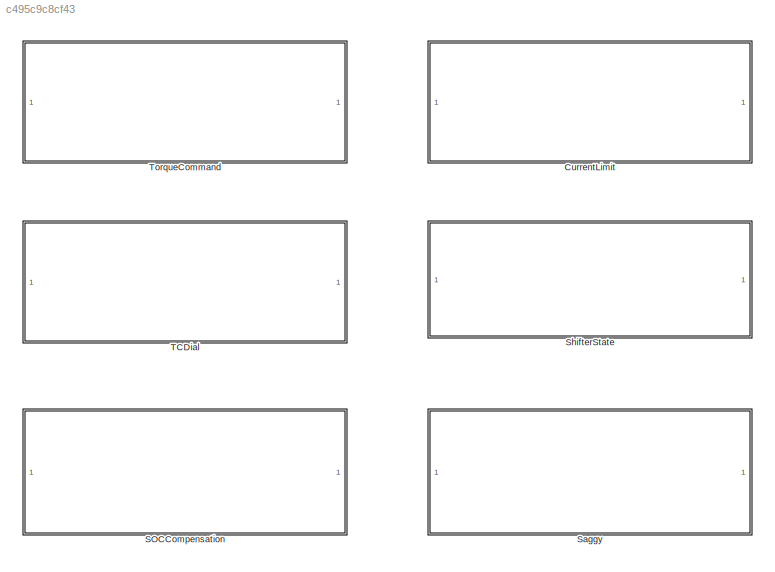
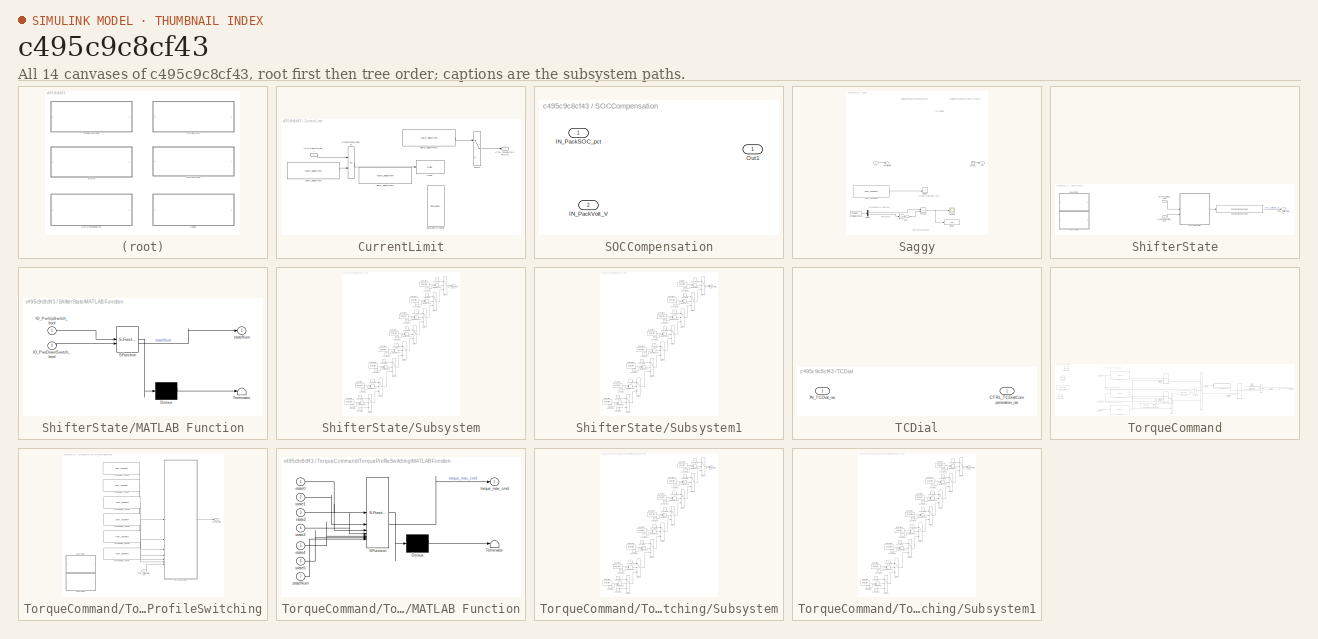
[diagram: thumbnail index - all 14 canvases of the model, root first then tree order]
MODEL slx_c495c9c8cf43
KIND library
CONFIG AbsTol = auto
CONFIG EnableMultiTasking = off
CONFIG FixedStep = auto
CONFIG MaxStep = auto
CONFIG MinStep = auto
CONFIG RelTol = 1e-3
CONFIG SampleTimeConstraint = Unconstrained
CONFIG SolverName = VariableStepAuto
CONFIG StartTime = 0.0
CONFIG StopTime = 10.0
BLOCK [SubSystem] CurrentLimit
  Commented = on
BLOCK [Outport] CurrentLimit/CTRL_TorqueCurrLim_Nm
BLOCK [Delay] CurrentLimit/Delay
  DelayLengthSource = Input port
  InputPortMap = u0,p1
BLOCK [RelationalOperator] CurrentLimit/GreaterThanOrEqual
  InputSameDT = off
  OutDataTypeStr = boolean
  RndMeth = Simplest
BLOCK [Inport] CurrentLimit/IN_DCBusCurrent_A
BLOCK [Reference] CurrentLimit/Saturation Dynamic  REF=simulink/Discontinuities/Saturation
Dynamic
  SourceBlock = simulink/Discontinuities/Saturation\nDynamic
  SourceType = Saturation Dynamic
BLOCK [Switch] CurrentLimit/Switch
  Criteria = u2 ~= 0
  InputSameDT = off
  SaturateOnIntegerOverflow = off
BLOCK [Reference] CurrentLimit/raptor_adjustment  REF=Raptor_lib/Data Storage/raptor_adjustment
  SourceBlock = Raptor_lib/Data Storage/raptor_adjustment
  SourceProductName = Raptor
  SourceType = Adjustment
BLOCK [Reference] CurrentLimit/raptor_adjustment1  REF=Raptor_lib/Data Storage/raptor_adjustment
  SourceBlock = Raptor_lib/Data Storage/raptor_adjustment
  SourceProductName = Raptor
  SourceType = Adjustment
BLOCK [Reference] CurrentLimit/raptor_adjustment2  REF=Raptor_lib/Data Storage/raptor_adjustment
  SourceBlock = Raptor_lib/Data Storage/raptor_adjustment
  SourceProductName = Raptor
  SourceType = Adjustment
BLOCK [SubSystem] SOCCompensation
BLOCK [Inport] SOCCompensation/IN_PackSOC_pct
BLOCK [Inport] SOCCompensation/IN_PackVolt_V
  Port = 2
BLOCK [Outport] SOCCompensation/Out1
BLOCK [SubSystem] Saggy
  Commented = on
BLOCK [Demux] Saggy/Demux
  Outputs = 2
BLOCK [Display] Saggy/Display
  Decimation = 1
BLOCK [Product] Saggy/Divide1
  Commented = on
  Inputs = */
BLOCK [FromWorkspace] Saggy/From Workspace
  SampleTime = -1
  VariableName = imu_input
BLOCK [Gain] Saggy/Gain
  Gain = (2*pi)/60
BLOCK [Ground] Saggy/Ground
BLOCK [Inport] Saggy/In1
BLOCK [Outport] Saggy/Out1
BLOCK [Product] Saggy/Product
BLOCK [Scope] Saggy/Scope
  Floating = off
  NumInputPorts = 1
  ScopeSpecificationString = Simulink.scopes.TimeScopeBlockCfg('CurrentConfiguration', extmgr.ConfigurationSet(extmgr.Configuration('Core','General UI',true),extmgr.Configuration('Core','Source UI',true),extmgr.Configuration('Sources','WiredSimulink',true),extmgr.Configuration('Visuals','Time Domain',true),extmgr.Configuration('Tools','Plot Navigation',true),extmgr.Configuration('Tools','Measurements',true)),'Version','2024a'...<+1ch>
BLOCK [Terminator] Saggy/Terminator
BLOCK [Reference] Saggy/raptor_adjustment2  REF=Raptor_lib/Data Storage/raptor_adjustment
  Commented = on
  SourceBlock = Raptor_lib/Data Storage/raptor_adjustment
  SourceProductName = Raptor
  SourceType = Adjustment
BLOCK [SubSystem] ShifterState
BLOCK [Outport] ShifterState/CTRL_ShifterState_en
BLOCK [Reference] ShifterState/EnumeratedOverMeas  REF=Utilities/EnumeratedOverMeas
  SourceBlock = Utilities/EnumeratedOverMeas
BLOCK [Inport] ShifterState/IO_PwrDownSwitch_bool
  Port = 2
BLOCK [Inport] ShifterState/IO_PwrUpSwitch_bool
BLOCK [SubSystem] ShifterState/MATLAB Function
  ErrorFcn = Stateflow.Translate.translate
  PermitHierarchicalResolution = ExplicitOnly
  SFBlockType = MATLAB Function
  TreatAsAtomicUnit = on
BLOCK [Demux] ShifterState/MATLAB Function/ Demux 
  Outputs = 1
BLOCK [S-Function] ShifterState/MATLAB Function/ SFunction 
  EnableBusSupport = off
  FunctionName = sf_sfun
  PortCounts = [2 2]
  SFcnIsStateOwnerBlock = off
  SFunctionDeploymentMode = off
  Tag = Stateflow S-Function 1
BLOCK [Terminator] ShifterState/MATLAB Function/ Terminator 
BLOCK [Inport] ShifterState/MATLAB Function/IO_PwrDownSwitch_bool
  Port = 2
BLOCK [Inport] ShifterState/MATLAB Function/IO_PwrUpSwitch_bool
BLOCK [Outport] ShifterState/MATLAB Function/stateNum
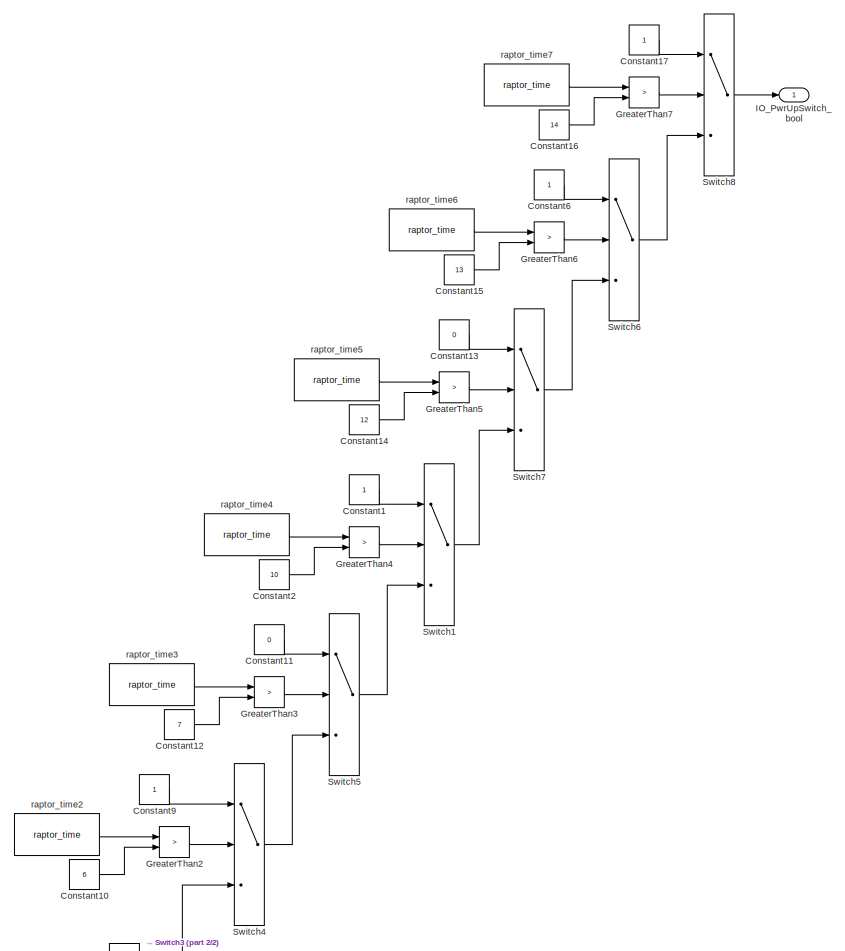
[diagram: ShifterState/Subsystem - part 1/2, full width, middle band]
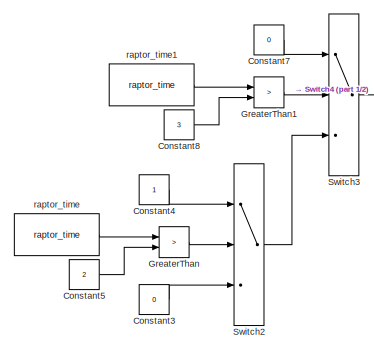
[diagram: ShifterState/Subsystem - part 2/2, bottom left region]
BLOCK [SubSystem] ShifterState/Subsystem
  Commented = on
BLOCK [Constant] ShifterState/Subsystem/Constant1
BLOCK [Constant] ShifterState/Subsystem/Constant10
  Value = 6
BLOCK [Constant] ShifterState/Subsystem/Constant11
  Value = 0
BLOCK [Constant] ShifterState/Subsystem/Constant12
  Value = 7
BLOCK [Constant] ShifterState/Subsystem/Constant13
  Value = 0
BLOCK [Constant] ShifterState/Subsystem/Constant14
  Value = 12
BLOCK [Constant] ShifterState/Subsystem/Constant15
  Value = 13
BLOCK [Constant] ShifterState/Subsystem/Constant16
  Value = 14
BLOCK [Constant] ShifterState/Subsystem/Constant17
BLOCK [Constant] ShifterState/Subsystem/Constant2
  Value = 10
BLOCK [Constant] ShifterState/Subsystem/Constant3
  Value = 0
BLOCK [Constant] ShifterState/Subsystem/Constant4
BLOCK [Constant] ShifterState/Subsystem/Constant5
  Value = 2
BLOCK [Constant] ShifterState/Subsystem/Constant6
BLOCK [Constant] ShifterState/Subsystem/Constant7
  Value = 0
BLOCK [Constant] ShifterState/Subsystem/Constant8
  Value = 3
BLOCK [Constant] ShifterState/Subsystem/Constant9
BLOCK [RelationalOperator] ShifterState/Subsystem/GreaterThan
  InputSameDT = off
  Operator = >
  OutDataTypeStr = boolean
  RndMeth = Simplest
BLOCK [RelationalOperator] ShifterState/Subsystem/GreaterThan1
  InputSameDT = off
  Operator = >
  OutDataTypeStr = boolean
  RndMeth = Simplest
BLOCK [RelationalOperator] ShifterState/Subsystem/GreaterThan2
  InputSameDT = off
  Operator = >
  OutDataTypeStr = boolean
  RndMeth = Simplest
BLOCK [RelationalOperator] ShifterState/Subsystem/GreaterThan3
  InputSameDT = off
  Operator = >
  OutDataTypeStr = boolean
  RndMeth = Simplest
BLOCK [RelationalOperator] ShifterState/Subsystem/GreaterThan4
  InputSameDT = off
  Operator = >
  OutDataTypeStr = boolean
  RndMeth = Simplest
BLOCK [RelationalOperator] ShifterState/Subsystem/GreaterThan5
  InputSameDT = off
  Operator = >
  OutDataTypeStr = boolean
  RndMeth = Simplest
BLOCK [RelationalOperator] ShifterState/Subsystem/GreaterThan6
  InputSameDT = off
  Operator = >
  OutDataTypeStr = boolean
  RndMeth = Simplest
BLOCK [RelationalOperator] ShifterState/Subsystem/GreaterThan7
  InputSameDT = off
  Operator = >
  OutDataTypeStr = boolean
  RndMeth = Simplest
BLOCK [Outport] ShifterState/Subsystem/IO_PwrUpSwitch_bool
BLOCK [Switch] ShifterState/Subsystem/Switch1
  Criteria = u2 > Threshold
  InputSameDT = off
  SaturateOnIntegerOverflow = off
BLOCK [Switch] ShifterState/Subsystem/Switch2
  Criteria = u2 > Threshold
  InputSameDT = off
  SaturateOnIntegerOverflow = off
BLOCK [Switch] ShifterState/Subsystem/Switch3
  Criteria = u2 > Threshold
  InputSameDT = off
  SaturateOnIntegerOverflow = off
BLOCK [Switch] ShifterState/Subsystem/Switch4
  Criteria = u2 > Threshold
  InputSameDT = off
  SaturateOnIntegerOverflow = off
BLOCK [Switch] ShifterState/Subsystem/Switch5
  Criteria = u2 > Threshold
  InputSameDT = off
  SaturateOnIntegerOverflow = off
BLOCK [Switch] ShifterState/Subsystem/Switch6
  Criteria = u2 > Threshold
  InputSameDT = off
  SaturateOnIntegerOverflow = off
BLOCK [Switch] ShifterState/Subsystem/Switch7
  Criteria = u2 > Threshold
  InputSameDT = off
  SaturateOnIntegerOverflow = off
BLOCK [Switch] ShifterState/Subsystem/Switch8
  Criteria = u2 > Threshold
  InputSameDT = off
  SaturateOnIntegerOverflow = off
BLOCK [Reference] ShifterState/Subsystem/raptor_time  REF=Raptor_lib/Triggers/raptor_time
  SourceBlock = Raptor_lib/Triggers/raptor_time
  SourceProductName = Raptor
  SourceType = Time
BLOCK [Reference] ShifterState/Subsystem/raptor_time1  REF=Raptor_lib/Triggers/raptor_time
  SourceBlock = Raptor_lib/Triggers/raptor_time
  SourceProductName = Raptor
  SourceType = Time
BLOCK [Reference] ShifterState/Subsystem/raptor_time2  REF=Raptor_lib/Triggers/raptor_time
  SourceBlock = Raptor_lib/Triggers/raptor_time
  SourceProductName = Raptor
  SourceType = Time
BLOCK [Reference] ShifterState/Subsystem/raptor_time3  REF=Raptor_lib/Triggers/raptor_time
  SourceBlock = Raptor_lib/Triggers/raptor_time
  SourceProductName = Raptor
  SourceType = Time
BLOCK [Reference] ShifterState/Subsystem/raptor_time4  REF=Raptor_lib/Triggers/raptor_time
  SourceBlock = Raptor_lib/Triggers/raptor_time
  SourceProductName = Raptor
  SourceType = Time
BLOCK [Reference] ShifterState/Subsystem/raptor_time5  REF=Raptor_lib/Triggers/raptor_time
  SourceBlock = Raptor_lib/Triggers/raptor_time
  SourceProductName = Raptor
  SourceType = Time
BLOCK [Reference] ShifterState/Subsystem/raptor_time6  REF=Raptor_lib/Triggers/raptor_time
  SourceBlock = Raptor_lib/Triggers/raptor_time
  SourceProductName = Raptor
  SourceType = Time
BLOCK [Reference] ShifterState/Subsystem/raptor_time7  REF=Raptor_lib/Triggers/raptor_time
  SourceBlock = Raptor_lib/Triggers/raptor_time
  SourceProductName = Raptor
  SourceType = Time
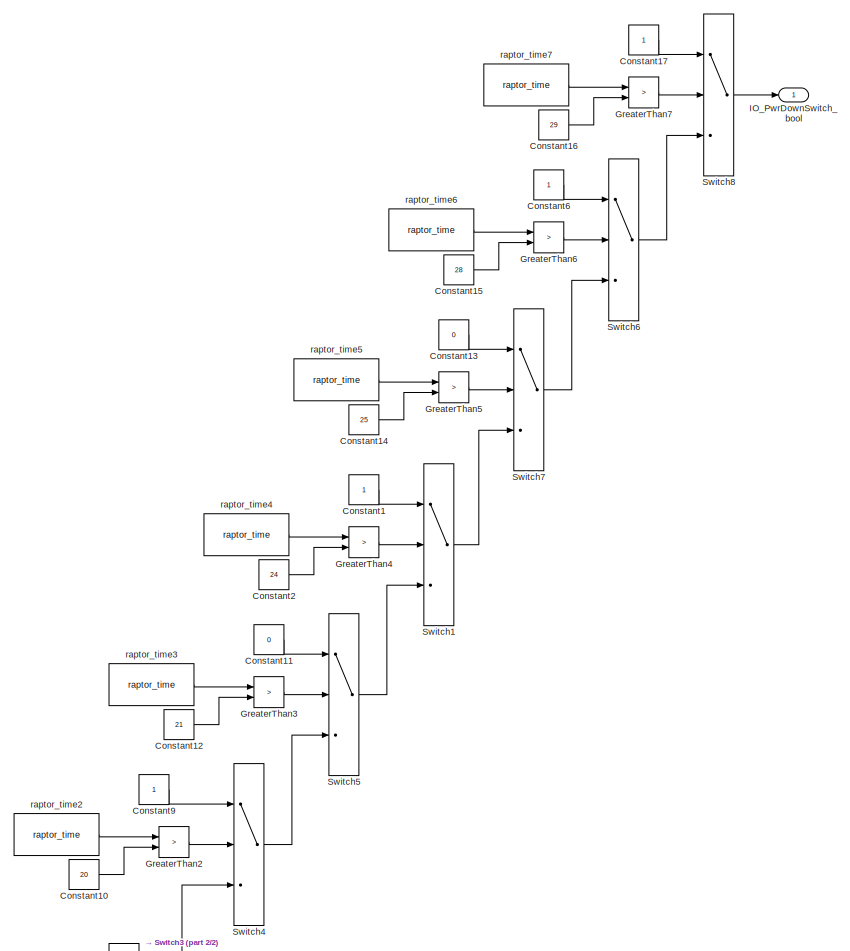
[diagram: ShifterState/Subsystem1 - part 1/2, full width, middle band]
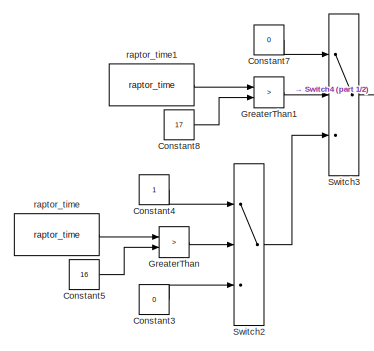
[diagram: ShifterState/Subsystem1 - part 2/2, bottom left region]
BLOCK [SubSystem] ShifterState/Subsystem1
  Commented = on
BLOCK [Constant] ShifterState/Subsystem1/Constant1
BLOCK [Constant] ShifterState/Subsystem1/Constant10
  Value = 20
BLOCK [Constant] ShifterState/Subsystem1/Constant11
  Value = 0
BLOCK [Constant] ShifterState/Subsystem1/Constant12
  Value = 21
BLOCK [Constant] ShifterState/Subsystem1/Constant13
  Value = 0
BLOCK [Constant] ShifterState/Subsystem1/Constant14
  Value = 25
BLOCK [Constant] ShifterState/Subsystem1/Constant15
  Value = 28
BLOCK [Constant] ShifterState/Subsystem1/Constant16
  Value = 29
BLOCK [Constant] ShifterState/Subsystem1/Constant17
BLOCK [Constant] ShifterState/Subsystem1/Constant2
  Value = 24
BLOCK [Constant] ShifterState/Subsystem1/Constant3
  Value = 0
BLOCK [Constant] ShifterState/Subsystem1/Constant4
BLOCK [Constant] ShifterState/Subsystem1/Constant5
  Value = 16
BLOCK [Constant] ShifterState/Subsystem1/Constant6
BLOCK [Constant] ShifterState/Subsystem1/Constant7
  Value = 0
BLOCK [Constant] ShifterState/Subsystem1/Constant8
  Value = 17
BLOCK [Constant] ShifterState/Subsystem1/Constant9
BLOCK [RelationalOperator] ShifterState/Subsystem1/GreaterThan
  InputSameDT = off
  Operator = >
  OutDataTypeStr = boolean
  RndMeth = Simplest
BLOCK [RelationalOperator] ShifterState/Subsystem1/GreaterThan1
  InputSameDT = off
  Operator = >
  OutDataTypeStr = boolean
  RndMeth = Simplest
BLOCK [RelationalOperator] ShifterState/Subsystem1/GreaterThan2
  InputSameDT = off
  Operator = >
  OutDataTypeStr = boolean
  RndMeth = Simplest
BLOCK [RelationalOperator] ShifterState/Subsystem1/GreaterThan3
  InputSameDT = off
  Operator = >
  OutDataTypeStr = boolean
  RndMeth = Simplest
BLOCK [RelationalOperator] ShifterState/Subsystem1/GreaterThan4
  InputSameDT = off
  Operator = >
  OutDataTypeStr = boolean
  RndMeth = Simplest
BLOCK [RelationalOperator] ShifterState/Subsystem1/GreaterThan5
  InputSameDT = off
  Operator = >
  OutDataTypeStr = boolean
  RndMeth = Simplest
BLOCK [RelationalOperator] ShifterState/Subsystem1/GreaterThan6
  InputSameDT = off
  Operator = >
  OutDataTypeStr = boolean
  RndMeth = Simplest
BLOCK [RelationalOperator] ShifterState/Subsystem1/GreaterThan7
  InputSameDT = off
  Operator = >
  OutDataTypeStr = boolean
  RndMeth = Simplest
BLOCK [Outport] ShifterState/Subsystem1/IO_PwrDownSwitch_bool
BLOCK [Switch] ShifterState/Subsystem1/Switch1
  Criteria = u2 > Threshold
  InputSameDT = off
  SaturateOnIntegerOverflow = off
BLOCK [Switch] ShifterState/Subsystem1/Switch2
  Criteria = u2 > Threshold
  InputSameDT = off
  SaturateOnIntegerOverflow = off
BLOCK [Switch] ShifterState/Subsystem1/Switch3
  Criteria = u2 > Threshold
  InputSameDT = off
  SaturateOnIntegerOverflow = off
BLOCK [Switch] ShifterState/Subsystem1/Switch4
  Criteria = u2 > Threshold
  InputSameDT = off
  SaturateOnIntegerOverflow = off
BLOCK [Switch] ShifterState/Subsystem1/Switch5
  Criteria = u2 > Threshold
  InputSameDT = off
  SaturateOnIntegerOverflow = off
BLOCK [Switch] ShifterState/Subsystem1/Switch6
  Criteria = u2 > Threshold
  InputSameDT = off
  SaturateOnIntegerOverflow = off
BLOCK [Switch] ShifterState/Subsystem1/Switch7
  Criteria = u2 > Threshold
  InputSameDT = off
  SaturateOnIntegerOverflow = off
BLOCK [Switch] ShifterState/Subsystem1/Switch8
  Criteria = u2 > Threshold
  InputSameDT = off
  SaturateOnIntegerOverflow = off
BLOCK [Reference] ShifterState/Subsystem1/raptor_time  REF=Raptor_lib/Triggers/raptor_time
  SourceBlock = Raptor_lib/Triggers/raptor_time
  SourceProductName = Raptor
  SourceType = Time
BLOCK [Reference] ShifterState/Subsystem1/raptor_time1  REF=Raptor_lib/Triggers/raptor_time
  SourceBlock = Raptor_lib/Triggers/raptor_time
  SourceProductName = Raptor
  SourceType = Time
BLOCK [Reference] ShifterState/Subsystem1/raptor_time2  REF=Raptor_lib/Triggers/raptor_time
  SourceBlock = Raptor_lib/Triggers/raptor_time
  SourceProductName = Raptor
  SourceType = Time
BLOCK [Reference] ShifterState/Subsystem1/raptor_time3  REF=Raptor_lib/Triggers/raptor_time
  SourceBlock = Raptor_lib/Triggers/raptor_time
  SourceProductName = Raptor
  SourceType = Time
BLOCK [Reference] ShifterState/Subsystem1/raptor_time4  REF=Raptor_lib/Triggers/raptor_time
  SourceBlock = Raptor_lib/Triggers/raptor_time
  SourceProductName = Raptor
  SourceType = Time
BLOCK [Reference] ShifterState/Subsystem1/raptor_time5  REF=Raptor_lib/Triggers/raptor_time
  SourceBlock = Raptor_lib/Triggers/raptor_time
  SourceProductName = Raptor
  SourceType = Time
BLOCK [Reference] ShifterState/Subsystem1/raptor_time6  REF=Raptor_lib/Triggers/raptor_time
  SourceBlock = Raptor_lib/Triggers/raptor_time
  SourceProductName = Raptor
  SourceType = Time
BLOCK [Reference] ShifterState/Subsystem1/raptor_time7  REF=Raptor_lib/Triggers/raptor_time
  SourceBlock = Raptor_lib/Triggers/raptor_time
  SourceProductName = Raptor
  SourceType = Time
BLOCK [SubSystem] TCDial
BLOCK [Outport] TCDial/CTRL_TCDialCompensation_na
BLOCK [Inport] TCDial/IN_TCDial_na
BLOCK [SubSystem] TorqueCommand
BLOCK [Lookup_n-D] TorqueCommand/1-D Lookup Table
  BreakpointsForDimension1 = [0;50;100;120;130;140;150;160;170;180;190;200;205;210;215;220;225;230;235;240;245;250;255;260;265;270;275;280;285;290;295;300]
  Commented = on
  InputPortMap = u0
  InternalRulePriority = Speed
  NumberOfTableDimensions = 1
  RndMeth = Simplest
  Table = [200;200;200;200;200;200;200;200;200;200;200;200;200;200;200;200;200;200;200;200;200;200;195;190;185;180;175;170;165;160;155;150]
BLOCK [Lookup_n-D] TorqueCommand/1-D Lookup Table1
  BreakpointsForDimension1 = [0;5;10;15;20;25;30;35;40;45;50;55;60;65;70;75;80;85;90;95;100]
  Commented = on
  InputPortMap = u0
  InternalRulePriority = Speed
  NumberOfTableDimensions = 1
  RndMeth = Simplest
  Table = [0;3;6;9;12;15;25;35;45;55;65;75;85;95;105;115;135;155;175;195;200]
BLOCK [Lookup_n-D] TorqueCommand/1-D Lookup Table2
  BreakpointsForDimension1 = [0;100;200;205;210;215;220;225;230;235;240;245;250;255;260;265;270;275;280;285;290;300;310;320;330;400]
  Commented = on
  InputPortMap = u0
  InternalRulePriority = Speed
  NumberOfTableDimensions = 1
  RndMeth = Simplest
  Table = [0;0;0;25;50;100;125;150;155;160;165;170;175;180;185;190;192;194;196;198;200;200;200;200;200;200]
BLOCK [Inport] TorqueCommand/CTRL_ShifterState_en
  Port = 4
BLOCK [Inport] TorqueCommand/CTRL_ThrottlePosition_pct
BLOCK [Outport] TorqueCommand/CTRL_TorqueCommand_Nm
BLOCK [Constant] TorqueCommand/Constant
  Value = uint8(0)
BLOCK [Constant] TorqueCommand/Constant1
  Value = uint8(0)
BLOCK [Constant] TorqueCommand/Constant2
  Value = uint8(0)
BLOCK [Constant] TorqueCommand/Constant3
  Value = uint8(0)
BLOCK [RelationalOperator] TorqueCommand/GreaterThanOrEqual
  InputSameDT = off
  OutDataTypeStr = boolean
  RndMeth = Simplest
BLOCK [RelationalOperator] TorqueCommand/GreaterThanOrEqual1
  InputSameDT = off
  Operator = <=
  OutDataTypeStr = boolean
  RndMeth = Simplest
BLOCK [Inport] TorqueCommand/IN_DCBusCurrent_A
  Port = 2
BLOCK [Inport] TorqueCommand/IN_DCBusVolt_V
  Port = 3
BLOCK [Reference] TorqueCommand/OverMeas  REF=Utilities/OverMeas
  SourceBlock = Utilities/OverMeas
BLOCK [Reference] TorqueCommand/Saturation Dynamic  REF=simulink/Discontinuities/Saturation
Dynamic
  SourceBlock = simulink/Discontinuities/Saturation\nDynamic
  SourceType = Saturation Dynamic
BLOCK [Reference] TorqueCommand/Saturation Dynamic1  REF=simulink/Discontinuities/Saturation
Dynamic
  SourceBlock = simulink/Discontinuities/Saturation\nDynamic
  SourceType = Saturation Dynamic
BLOCK [Reference] TorqueCommand/Saturation Dynamic2  REF=simulink/Discontinuities/Saturation
Dynamic
  SourceBlock = simulink/Discontinuities/Saturation\nDynamic
  SourceType = Saturation Dynamic
BLOCK [Switch] TorqueCommand/Switch
  Criteria = u2 ~= 0
  InputSameDT = off
  SaturateOnIntegerOverflow = off
BLOCK [Switch] TorqueCommand/Switch1
  Criteria = u2 ~= 0
  InputSameDT = off
  SaturateOnIntegerOverflow = off
BLOCK [Switch] TorqueCommand/Switch2
  Criteria = u2 ~= 0
  InputSameDT = off
  SaturateOnIntegerOverflow = off
BLOCK [SubSystem] TorqueCommand/TorqueProfileSwitching
BLOCK [Inport] TorqueCommand/TorqueProfileSwitching/CTRL_ShifterState_en
BLOCK [SubSystem] TorqueCommand/TorqueProfileSwitching/MATLAB Function
  ErrorFcn = Stateflow.Translate.translate
  PermitHierarchicalResolution = ExplicitOnly
  SFBlockType = MATLAB Function
  TreatAsAtomicUnit = on
BLOCK [Demux] TorqueCommand/TorqueProfileSwitching/MATLAB Function/ Demux 
  Outputs = 1
BLOCK [S-Function] TorqueCommand/TorqueProfileSwitching/MATLAB Function/ SFunction 
  EnableBusSupport = off
  FunctionName = sf_sfun
  PortCounts = [7 2]
  SFcnIsStateOwnerBlock = off
  SFunctionDeploymentMode = off
  Tag = Stateflow S-Function 2
BLOCK [Terminator] TorqueCommand/TorqueProfileSwitching/MATLAB Function/ Terminator 
BLOCK [Inport] TorqueCommand/TorqueProfileSwitching/MATLAB Function/state0
BLOCK [Inport] TorqueCommand/TorqueProfileSwitching/MATLAB Function/state1
  Port = 2
BLOCK [Inport] TorqueCommand/TorqueProfileSwitching/MATLAB Function/state2
  Port = 3
BLOCK [Inport] TorqueCommand/TorqueProfileSwitching/MATLAB Function/state3
  Port = 4
BLOCK [Inport] TorqueCommand/TorqueProfileSwitching/MATLAB Function/state4
  Port = 5
BLOCK [Inport] TorqueCommand/TorqueProfileSwitching/MATLAB Function/state5
  Port = 6
BLOCK [Inport] TorqueCommand/TorqueProfileSwitching/MATLAB Function/stateNum
  Port = 7
BLOCK [Outport] TorqueCommand/TorqueProfileSwitching/MATLAB Function/torque_max_cmd
BLOCK [SubSystem] TorqueCommand/TorqueProfileSwitching/Subsystem
  Commented = on
BLOCK [Constant] TorqueCommand/TorqueProfileSwitching/Subsystem/Constant1
BLOCK [Constant] TorqueCommand/TorqueProfileSwitching/Subsystem/Constant10
  Value = 6
BLOCK [Constant] TorqueCommand/TorqueProfileSwitching/Subsystem/Constant11
  Value = 0
BLOCK [Constant] TorqueCommand/TorqueProfileSwitching/Subsystem/Constant12
  Value = 7
BLOCK [Constant] TorqueCommand/TorqueProfileSwitching/Subsystem/Constant13
  Value = 0
BLOCK [Constant] TorqueCommand/TorqueProfileSwitching/Subsystem/Constant14
  Value = 12
BLOCK [Constant] TorqueCommand/TorqueProfileSwitching/Subsystem/Constant15
  Value = 13
BLOCK [Constant] TorqueCommand/TorqueProfileSwitching/Subsystem/Constant16
  Value = 14
BLOCK [Constant] TorqueCommand/TorqueProfileSwitching/Subsystem/Constant17
BLOCK [Constant] TorqueCommand/TorqueProfileSwitching/Subsystem/Constant2
  Value = 10
BLOCK [Constant] TorqueCommand/TorqueProfileSwitching/Subsystem/Constant3
  Value = 0
BLOCK [Constant] TorqueCommand/TorqueProfileSwitching/Subsystem/Constant4
BLOCK [Constant] TorqueCommand/TorqueProfileSwitching/Subsystem/Constant5
  Value = 2
BLOCK [Constant] TorqueCommand/TorqueProfileSwitching/Subsystem/Constant6
BLOCK [Constant] TorqueCommand/TorqueProfileSwitching/Subsystem/Constant7
  Value = 0
BLOCK [Constant] TorqueCommand/TorqueProfileSwitching/Subsystem/Constant8
  Value = 3
BLOCK [Constant] TorqueCommand/TorqueProfileSwitching/Subsystem/Constant9
BLOCK [RelationalOperator] TorqueCommand/TorqueProfileSwitching/Subsystem/GreaterThan
  InputSameDT = off
  Operator = >
  OutDataTypeStr = boolean
  RndMeth = Simplest
BLOCK [RelationalOperator] TorqueCommand/TorqueProfileSwitching/Subsystem/GreaterThan1
  InputSameDT = off
  Operator = >
  OutDataTypeStr = boolean
  RndMeth = Simplest
BLOCK [RelationalOperator] TorqueCommand/TorqueProfileSwitching/Subsystem/GreaterThan2
  InputSameDT = off
  Operator = >
  OutDataTypeStr = boolean
  RndMeth = Simplest
BLOCK [RelationalOperator] TorqueCommand/TorqueProfileSwitching/Subsystem/GreaterThan3
  InputSameDT = off
  Operator = >
  OutDataTypeStr = boolean
  RndMeth = Simplest
BLOCK [RelationalOperator] TorqueCommand/TorqueProfileSwitching/Subsystem/GreaterThan4
  InputSameDT = off
  Operator = >
  OutDataTypeStr = boolean
  RndMeth = Simplest
BLOCK [RelationalOperator] TorqueCommand/TorqueProfileSwitching/Subsystem/GreaterThan5
  InputSameDT = off
  Operator = >
  OutDataTypeStr = boolean
  RndMeth = Simplest
BLOCK [RelationalOperator] TorqueCommand/TorqueProfileSwitching/Subsystem/GreaterThan6
  InputSameDT = off
  Operator = >
  OutDataTypeStr = boolean
  RndMeth = Simplest
BLOCK [RelationalOperator] TorqueCommand/TorqueProfileSwitching/Subsystem/GreaterThan7
  InputSameDT = off
  Operator = >
  OutDataTypeStr = boolean
  RndMeth = Simplest
BLOCK [Outport] TorqueCommand/TorqueProfileSwitching/Subsystem/IO_PwrUpSwitch_bool
BLOCK [Switch] TorqueCommand/TorqueProfileSwitching/Subsystem/Switch1
  Criteria = u2 > Threshold
  InputSameDT = off
  SaturateOnIntegerOverflow = off
BLOCK [Switch] TorqueCommand/TorqueProfileSwitching/Subsystem/Switch2
  Criteria = u2 > Threshold
  InputSameDT = off
  SaturateOnIntegerOverflow = off
BLOCK [Switch] TorqueCommand/TorqueProfileSwitching/Subsystem/Switch3
  Criteria = u2 > Threshold
  InputSameDT = off
  SaturateOnIntegerOverflow = off
BLOCK [Switch] TorqueCommand/TorqueProfileSwitching/Subsystem/Switch4
  Criteria = u2 > Threshold
  InputSameDT = off
  SaturateOnIntegerOverflow = off
BLOCK [Switch] TorqueCommand/TorqueProfileSwitching/Subsystem/Switch5
  Criteria = u2 > Threshold
  InputSameDT = off
  SaturateOnIntegerOverflow = off
BLOCK [Switch] TorqueCommand/TorqueProfileSwitching/Subsystem/Switch6
  Criteria = u2 > Threshold
  InputSameDT = off
  SaturateOnIntegerOverflow = off
BLOCK [Switch] TorqueCommand/TorqueProfileSwitching/Subsystem/Switch7
  Criteria = u2 > Threshold
  InputSameDT = off
  SaturateOnIntegerOverflow = off
BLOCK [Switch] TorqueCommand/TorqueProfileSwitching/Subsystem/Switch8
  Criteria = u2 > Threshold
  InputSameDT = off
  SaturateOnIntegerOverflow = off
BLOCK [Reference] TorqueCommand/TorqueProfileSwitching/Subsystem/raptor_time  REF=Raptor_lib/Triggers/raptor_time
  SourceBlock = Raptor_lib/Triggers/raptor_time
  SourceProductName = Raptor
  SourceType = Time
BLOCK [Reference] TorqueCommand/TorqueProfileSwitching/Subsystem/raptor_time1  REF=Raptor_lib/Triggers/raptor_time
  SourceBlock = Raptor_lib/Triggers/raptor_time
  SourceProductName = Raptor
  SourceType = Time
BLOCK [Reference] TorqueCommand/TorqueProfileSwitching/Subsystem/raptor_time2  REF=Raptor_lib/Triggers/raptor_time
  SourceBlock = Raptor_lib/Triggers/raptor_time
  SourceProductName = Raptor
  SourceType = Time
BLOCK [Reference] TorqueCommand/TorqueProfileSwitching/Subsystem/raptor_time3  REF=Raptor_lib/Triggers/raptor_time
  SourceBlock = Raptor_lib/Triggers/raptor_time
  SourceProductName = Raptor
  SourceType = Time
BLOCK [Reference] TorqueCommand/TorqueProfileSwitching/Subsystem/raptor_time4  REF=Raptor_lib/Triggers/raptor_time
  SourceBlock = Raptor_lib/Triggers/raptor_time
  SourceProductName = Raptor
  SourceType = Time
BLOCK [Reference] TorqueCommand/TorqueProfileSwitching/Subsystem/raptor_time5  REF=Raptor_lib/Triggers/raptor_time
  SourceBlock = Raptor_lib/Triggers/raptor_time
  SourceProductName = Raptor
  SourceType = Time
BLOCK [Reference] TorqueCommand/TorqueProfileSwitching/Subsystem/raptor_time6  REF=Raptor_lib/Triggers/raptor_time
  SourceBlock = Raptor_lib/Triggers/raptor_time
  SourceProductName = Raptor
  SourceType = Time
BLOCK [Reference] TorqueCommand/TorqueProfileSwitching/Subsystem/raptor_time7  REF=Raptor_lib/Triggers/raptor_time
  SourceBlock = Raptor_lib/Triggers/raptor_time
  SourceProductName = Raptor
  SourceType = Time
BLOCK [SubSystem] TorqueCommand/TorqueProfileSwitching/Subsystem1
  Commented = on
BLOCK [Constant] TorqueCommand/TorqueProfileSwitching/Subsystem1/Constant1
BLOCK [Constant] TorqueCommand/TorqueProfileSwitching/Subsystem1/Constant10
  Value = 20
BLOCK [Constant] TorqueCommand/TorqueProfileSwitching/Subsystem1/Constant11
  Value = 0
BLOCK [Constant] TorqueCommand/TorqueProfileSwitching/Subsystem1/Constant12
  Value = 21
BLOCK [Constant] TorqueCommand/TorqueProfileSwitching/Subsystem1/Constant13
  Value = 0
BLOCK [Constant] TorqueCommand/TorqueProfileSwitching/Subsystem1/Constant14
  Value = 25
BLOCK [Constant] TorqueCommand/TorqueProfileSwitching/Subsystem1/Constant15
  Value = 28
BLOCK [Constant] TorqueCommand/TorqueProfileSwitching/Subsystem1/Constant16
  Value = 29
BLOCK [Constant] TorqueCommand/TorqueProfileSwitching/Subsystem1/Constant17
BLOCK [Constant] TorqueCommand/TorqueProfileSwitching/Subsystem1/Constant2
  Value = 24
BLOCK [Constant] TorqueCommand/TorqueProfileSwitching/Subsystem1/Constant3
  Value = 0
BLOCK [Constant] TorqueCommand/TorqueProfileSwitching/Subsystem1/Constant4
BLOCK [Constant] TorqueCommand/TorqueProfileSwitching/Subsystem1/Constant5
  Value = 16
BLOCK [Constant] TorqueCommand/TorqueProfileSwitching/Subsystem1/Constant6
BLOCK [Constant] TorqueCommand/TorqueProfileSwitching/Subsystem1/Constant7
  Value = 0
BLOCK [Constant] TorqueCommand/TorqueProfileSwitching/Subsystem1/Constant8
  Value = 17
BLOCK [Constant] TorqueCommand/TorqueProfileSwitching/Subsystem1/Constant9
BLOCK [RelationalOperator] TorqueCommand/TorqueProfileSwitching/Subsystem1/GreaterThan
  InputSameDT = off
  Operator = >
  OutDataTypeStr = boolean
  RndMeth = Simplest
BLOCK [RelationalOperator] TorqueCommand/TorqueProfileSwitching/Subsystem1/GreaterThan1
  InputSameDT = off
  Operator = >
  OutDataTypeStr = boolean
  RndMeth = Simplest
BLOCK [RelationalOperator] TorqueCommand/TorqueProfileSwitching/Subsystem1/GreaterThan2
  InputSameDT = off
  Operator = >
  OutDataTypeStr = boolean
  RndMeth = Simplest
BLOCK [RelationalOperator] TorqueCommand/TorqueProfileSwitching/Subsystem1/GreaterThan3
  InputSameDT = off
  Operator = >
  OutDataTypeStr = boolean
  RndMeth = Simplest
BLOCK [RelationalOperator] TorqueCommand/TorqueProfileSwitching/Subsystem1/GreaterThan4
  InputSameDT = off
  Operator = >
  OutDataTypeStr = boolean
  RndMeth = Simplest
BLOCK [RelationalOperator] TorqueCommand/TorqueProfileSwitching/Subsystem1/GreaterThan5
  InputSameDT = off
  Operator = >
  OutDataTypeStr = boolean
  RndMeth = Simplest
BLOCK [RelationalOperator] TorqueCommand/TorqueProfileSwitching/Subsystem1/GreaterThan6
  InputSameDT = off
  Operator = >
  OutDataTypeStr = boolean
  RndMeth = Simplest
BLOCK [RelationalOperator] TorqueCommand/TorqueProfileSwitching/Subsystem1/GreaterThan7
  InputSameDT = off
  Operator = >
  OutDataTypeStr = boolean
  RndMeth = Simplest
BLOCK [Outport] TorqueCommand/TorqueProfileSwitching/Subsystem1/IO_PwrDownSwitch_bool
BLOCK [Switch] TorqueCommand/TorqueProfileSwitching/Subsystem1/Switch1
  Criteria = u2 > Threshold
  InputSameDT = off
  SaturateOnIntegerOverflow = off
BLOCK [Switch] TorqueCommand/TorqueProfileSwitching/Subsystem1/Switch2
  Criteria = u2 > Threshold
  InputSameDT = off
  SaturateOnIntegerOverflow = off
BLOCK [Switch] TorqueCommand/TorqueProfileSwitching/Subsystem1/Switch3
  Criteria = u2 > Threshold
  InputSameDT = off
  SaturateOnIntegerOverflow = off
BLOCK [Switch] TorqueCommand/TorqueProfileSwitching/Subsystem1/Switch4
  Criteria = u2 > Threshold
  InputSameDT = off
  SaturateOnIntegerOverflow = off
BLOCK [Switch] TorqueCommand/TorqueProfileSwitching/Subsystem1/Switch5
  Criteria = u2 > Threshold
  InputSameDT = off
  SaturateOnIntegerOverflow = off
BLOCK [Switch] TorqueCommand/TorqueProfileSwitching/Subsystem1/Switch6
  Criteria = u2 > Threshold
  InputSameDT = off
  SaturateOnIntegerOverflow = off
BLOCK [Switch] TorqueCommand/TorqueProfileSwitching/Subsystem1/Switch7
  Criteria = u2 > Threshold
  InputSameDT = off
  SaturateOnIntegerOverflow = off
BLOCK [Switch] TorqueCommand/TorqueProfileSwitching/Subsystem1/Switch8
  Criteria = u2 > Threshold
  InputSameDT = off
  SaturateOnIntegerOverflow = off
BLOCK [Reference] TorqueCommand/TorqueProfileSwitching/Subsystem1/raptor_time  REF=Raptor_lib/Triggers/raptor_time
  SourceBlock = Raptor_lib/Triggers/raptor_time
  SourceProductName = Raptor
  SourceType = Time
BLOCK [Reference] TorqueCommand/TorqueProfileSwitching/Subsystem1/raptor_time1  REF=Raptor_lib/Triggers/raptor_time
  SourceBlock = Raptor_lib/Triggers/raptor_time
  SourceProductName = Raptor
  SourceType = Time
BLOCK [Reference] TorqueCommand/TorqueProfileSwitching/Subsystem1/raptor_time2  REF=Raptor_lib/Triggers/raptor_time
  SourceBlock = Raptor_lib/Triggers/raptor_time
  SourceProductName = Raptor
  SourceType = Time
BLOCK [Reference] TorqueCommand/TorqueProfileSwitching/Subsystem1/raptor_time3  REF=Raptor_lib/Triggers/raptor_time
  SourceBlock = Raptor_lib/Triggers/raptor_time
  SourceProductName = Raptor
  SourceType = Time
BLOCK [Reference] TorqueCommand/TorqueProfileSwitching/Subsystem1/raptor_time4  REF=Raptor_lib/Triggers/raptor_time
  SourceBlock = Raptor_lib/Triggers/raptor_time
  SourceProductName = Raptor
  SourceType = Time
BLOCK [Reference] TorqueCommand/TorqueProfileSwitching/Subsystem1/raptor_time5  REF=Raptor_lib/Triggers/raptor_time
  SourceBlock = Raptor_lib/Triggers/raptor_time
  SourceProductName = Raptor
  SourceType = Time
BLOCK [Reference] TorqueCommand/TorqueProfileSwitching/Subsystem1/raptor_time6  REF=Raptor_lib/Triggers/raptor_time
  SourceBlock = Raptor_lib/Triggers/raptor_time
  SourceProductName = Raptor
  SourceType = Time
BLOCK [Reference] TorqueCommand/TorqueProfileSwitching/Subsystem1/raptor_time7  REF=Raptor_lib/Triggers/raptor_time
  SourceBlock = Raptor_lib/Triggers/raptor_time
  SourceProductName = Raptor
  SourceType = Time
BLOCK [Outport] TorqueCommand/TorqueProfileSwitching/TorqueLimit
BLOCK [Reference] TorqueCommand/TorqueProfileSwitching/TorqueMax_100Nm  REF=Raptor_lib/Data Storage/raptor_adjustment
  SourceBlock = Raptor_lib/Data Storage/raptor_adjustment
  SourceProductName = Raptor
  SourceType = Adjustment
BLOCK [Reference] TorqueCommand/TorqueProfileSwitching/TorqueMax_120Nm  REF=Raptor_lib/Data Storage/raptor_adjustment
  SourceBlock = Raptor_lib/Data Storage/raptor_adjustment
  SourceProductName = Raptor
  SourceType = Adjustment
BLOCK [Reference] TorqueCommand/TorqueProfileSwitching/TorqueMax_140Nm  REF=Raptor_lib/Data Storage/raptor_adjustment
  SourceBlock = Raptor_lib/Data Storage/raptor_adjustment
  SourceProductName = Raptor
  SourceType = Adjustment
BLOCK [Reference] TorqueCommand/TorqueProfileSwitching/TorqueMax_160Nm  REF=Raptor_lib/Data Storage/raptor_adjustment
  SourceBlock = Raptor_lib/Data Storage/raptor_adjustment
  SourceProductName = Raptor
  SourceType = Adjustment
BLOCK [Reference] TorqueCommand/TorqueProfileSwitching/TorqueMax_180Nm  REF=Raptor_lib/Data Storage/raptor_adjustment
  SourceBlock = Raptor_lib/Data Storage/raptor_adjustment
  SourceProductName = Raptor
  SourceType = Adjustment
BLOCK [Reference] TorqueCommand/TorqueProfileSwitching/TorqueMax_200Nm  REF=Raptor_lib/Data Storage/raptor_adjustment
  SourceBlock = Raptor_lib/Data Storage/raptor_adjustment
  SourceProductName = Raptor
  SourceType = Adjustment
BLOCK [Reference] TorqueCommand/raptor_adjustment1  REF=Raptor_lib/Data Storage/raptor_adjustment
  SourceBlock = Raptor_lib/Data Storage/raptor_adjustment
  SourceProductName = Raptor
  SourceType = Adjustment
BLOCK [Reference] TorqueCommand/raptor_adjustment2  REF=Raptor_lib/Data Storage/raptor_adjustment
  SourceBlock = Raptor_lib/Data Storage/raptor_adjustment
  SourceProductName = Raptor
  SourceType = Adjustment
BLOCK [Reference] TorqueCommand/raptor_adjustment3  REF=Raptor_lib/Data Storage/raptor_adjustment
  Commented = on
  SourceBlock = Raptor_lib/Data Storage/raptor_adjustment
  SourceProductName = Raptor
  SourceType = Adjustment
BLOCK [Reference] TorqueCommand/raptor_fault_action  REF=Raptor_lib/Faults/raptor_fault_action
  SourceBlock = Raptor_lib/Faults/raptor_fault_action
  SourceProductName = Raptor
  SourceType = Fault Action
BLOCK [Reference] TorqueCommand/raptor_table_1d  REF=Raptor_lib/Table Lookup/raptor_table_1d
  SourceBlock = Raptor_lib/Table Lookup/raptor_table_1d
  SourceProductName = Raptor
  SourceType = Table 1d
BLOCK [Reference] TorqueCommand/raptor_table_1d1  REF=Raptor_lib/Table Lookup/raptor_table_1d
  SourceBlock = Raptor_lib/Table Lookup/raptor_table_1d
  SourceProductName = Raptor
  SourceType = Table 1d
BLOCK [Reference] TorqueCommand/raptor_table_1d2  REF=Raptor_lib/Table Lookup/raptor_table_1d
  SourceBlock = Raptor_lib/Table Lookup/raptor_table_1d
  SourceProductName = Raptor
  SourceType = Table 1d
ANNOTATION Saggy: angular acceleration (rad/s)
ANNOTATION Saggy: force of motor
ANNOTATION Saggy: maximize torque while reducing current draw
ANNOTATION Saggy: motor mechanical power
ANNOTATION Saggy: motor speed
ANNOTATION Saggy: torque feedback (net torque)
ANNOTATION Saggy: want to detect voltage sag before it happens
ANNOTATION TorqueCommand: if there is an overcurrent condition, set new torque limit
ANNOTATION TorqueCommand: if there is an undervoltage condition, set new torque limit
ANNOTATION TorqueCommand: what torque values do we see? check logs
LINE CurrentLimit/GreaterThanOrEqual:1 -> CurrentLimit/Delay:1
LINE CurrentLimit/IN_DCBusCurrent_A:1 -> CurrentLimit/GreaterThanOrEqual:1
LINE CurrentLimit/Switch:1 -> CurrentLimit/CTRL_TorqueCurrLim_Nm:1
LINE CurrentLimit/raptor_adjustment1:1 -> CurrentLimit/Switch:1
LINE CurrentLimit/raptor_adjustment:1 -> CurrentLimit/GreaterThanOrEqual:2
LINE Saggy/Demux:1 -> Saggy/Product:1
LINE Saggy/Demux:2 -> Saggy/Gain:1
LINE Saggy/From Workspace:1 -> Saggy/Demux:1
LINE Saggy/Gain:1 -> Saggy/Product:2
LINE Saggy/Ground:1 -> Saggy/Out1:1
LINE Saggy/In1:1 -> Saggy/Terminator:1
NET Saggy/Product:1 -> Saggy/Display:1, Saggy/Scope:1
LINE Saggy/raptor_adjustment2:1 -> Saggy/Divide1:2
LINE ShifterState/EnumeratedOverMeas:1 -> ShifterState/CTRL_ShifterState_en:1
LINE ShifterState/IO_PwrDownSwitch_bool:1 -> ShifterState/MATLAB Function:2
LINE ShifterState/IO_PwrUpSwitch_bool:1 -> ShifterState/MATLAB Function:1
LINE ShifterState/MATLAB Function:1 -> ShifterState/EnumeratedOverMeas:1
LINE ShifterState/Subsystem/Constant10:1 -> ShifterState/Subsystem/GreaterThan2:2
LINE ShifterState/Subsystem/Constant11:1 -> ShifterState/Subsystem/Switch5:1
LINE ShifterState/Subsystem/Constant12:1 -> ShifterState/Subsystem/GreaterThan3:2
LINE ShifterState/Subsystem/Constant13:1 -> ShifterState/Subsystem/Switch7:1
LINE ShifterState/Subsystem/Constant14:1 -> ShifterState/Subsystem/GreaterThan5:2
LINE ShifterState/Subsystem/Constant15:1 -> ShifterState/Subsystem/GreaterThan6:2
LINE ShifterState/Subsystem/Constant16:1 -> ShifterState/Subsystem/GreaterThan7:2
LINE ShifterState/Subsystem/Constant17:1 -> ShifterState/Subsystem/Switch8:1
LINE ShifterState/Subsystem/Constant1:1 -> ShifterState/Subsystem/Switch1:1
LINE ShifterState/Subsystem/Constant2:1 -> ShifterState/Subsystem/GreaterThan4:2
LINE ShifterState/Subsystem/Constant3:1 -> ShifterState/Subsystem/Switch2:3
LINE ShifterState/Subsystem/Constant4:1 -> ShifterState/Subsystem/Switch2:1
LINE ShifterState/Subsystem/Constant5:1 -> ShifterState/Subsystem/GreaterThan:2
LINE ShifterState/Subsystem/Constant6:1 -> ShifterState/Subsystem/Switch6:1
LINE ShifterState/Subsystem/Constant7:1 -> ShifterState/Subsystem/Switch3:1
LINE ShifterState/Subsystem/Constant8:1 -> ShifterState/Subsystem/GreaterThan1:2
LINE ShifterState/Subsystem/Constant9:1 -> ShifterState/Subsystem/Switch4:1
LINE ShifterState/Subsystem/GreaterThan1:1 -> ShifterState/Subsystem/Switch3:2
LINE ShifterState/Subsystem/GreaterThan2:1 -> ShifterState/Subsystem/Switch4:2
LINE ShifterState/Subsystem/GreaterThan3:1 -> ShifterState/Subsystem/Switch5:2
LINE ShifterState/Subsystem/GreaterThan4:1 -> ShifterState/Subsystem/Switch1:2
LINE ShifterState/Subsystem/GreaterThan5:1 -> ShifterState/Subsystem/Switch7:2
LINE ShifterState/Subsystem/GreaterThan6:1 -> ShifterState/Subsystem/Switch6:2
LINE ShifterState/Subsystem/GreaterThan7:1 -> ShifterState/Subsystem/Switch8:2
LINE ShifterState/Subsystem/GreaterThan:1 -> ShifterState/Subsystem/Switch2:2
LINE ShifterState/Subsystem/Switch1:1 -> ShifterState/Subsystem/Switch7:3
LINE ShifterState/Subsystem/Switch2:1 -> ShifterState/Subsystem/Switch3:3
LINE ShifterState/Subsystem/Switch3:1 -> ShifterState/Subsystem/Switch4:3
LINE ShifterState/Subsystem/Switch4:1 -> ShifterState/Subsystem/Switch5:3
LINE ShifterState/Subsystem/Switch5:1 -> ShifterState/Subsystem/Switch1:3
LINE ShifterState/Subsystem/Switch6:1 -> ShifterState/Subsystem/Switch8:3
LINE ShifterState/Subsystem/Switch7:1 -> ShifterState/Subsystem/Switch6:3
LINE ShifterState/Subsystem/Switch8:1 -> ShifterState/Subsystem/IO_PwrUpSwitch_bool:1
LINE ShifterState/Subsystem/raptor_time1:1 -> ShifterState/Subsystem/GreaterThan1:1
LINE ShifterState/Subsystem/raptor_time2:1 -> ShifterState/Subsystem/GreaterThan2:1
LINE ShifterState/Subsystem/raptor_time3:1 -> ShifterState/Subsystem/GreaterThan3:1
LINE ShifterState/Subsystem/raptor_time4:1 -> ShifterState/Subsystem/GreaterThan4:1
LINE ShifterState/Subsystem/raptor_time5:1 -> ShifterState/Subsystem/GreaterThan5:1
LINE ShifterState/Subsystem/raptor_time6:1 -> ShifterState/Subsystem/GreaterThan6:1
LINE ShifterState/Subsystem/raptor_time7:1 -> ShifterState/Subsystem/GreaterThan7:1
LINE ShifterState/Subsystem/raptor_time:1 -> ShifterState/Subsystem/GreaterThan:1
LINE ShifterState/Subsystem1/Constant10:1 -> ShifterState/Subsystem1/GreaterThan2:2
LINE ShifterState/Subsystem1/Constant11:1 -> ShifterState/Subsystem1/Switch5:1
LINE ShifterState/Subsystem1/Constant12:1 -> ShifterState/Subsystem1/GreaterThan3:2
LINE ShifterState/Subsystem1/Constant13:1 -> ShifterState/Subsystem1/Switch7:1
LINE ShifterState/Subsystem1/Constant14:1 -> ShifterState/Subsystem1/GreaterThan5:2
LINE ShifterState/Subsystem1/Constant15:1 -> ShifterState/Subsystem1/GreaterThan6:2
LINE ShifterState/Subsystem1/Constant16:1 -> ShifterState/Subsystem1/GreaterThan7:2
LINE ShifterState/Subsystem1/Constant17:1 -> ShifterState/Subsystem1/Switch8:1
LINE ShifterState/Subsystem1/Constant1:1 -> ShifterState/Subsystem1/Switch1:1
LINE ShifterState/Subsystem1/Constant2:1 -> ShifterState/Subsystem1/GreaterThan4:2
LINE ShifterState/Subsystem1/Constant3:1 -> ShifterState/Subsystem1/Switch2:3
LINE ShifterState/Subsystem1/Constant4:1 -> ShifterState/Subsystem1/Switch2:1
LINE ShifterState/Subsystem1/Constant5:1 -> ShifterState/Subsystem1/GreaterThan:2
LINE ShifterState/Subsystem1/Constant6:1 -> ShifterState/Subsystem1/Switch6:1
LINE ShifterState/Subsystem1/Constant7:1 -> ShifterState/Subsystem1/Switch3:1
LINE ShifterState/Subsystem1/Constant8:1 -> ShifterState/Subsystem1/GreaterThan1:2
LINE ShifterState/Subsystem1/Constant9:1 -> ShifterState/Subsystem1/Switch4:1
LINE ShifterState/Subsystem1/GreaterThan1:1 -> ShifterState/Subsystem1/Switch3:2
LINE ShifterState/Subsystem1/GreaterThan2:1 -> ShifterState/Subsystem1/Switch4:2
LINE ShifterState/Subsystem1/GreaterThan3:1 -> ShifterState/Subsystem1/Switch5:2
LINE ShifterState/Subsystem1/GreaterThan4:1 -> ShifterState/Subsystem1/Switch1:2
LINE ShifterState/Subsystem1/GreaterThan5:1 -> ShifterState/Subsystem1/Switch7:2
LINE ShifterState/Subsystem1/GreaterThan6:1 -> ShifterState/Subsystem1/Switch6:2
LINE ShifterState/Subsystem1/GreaterThan7:1 -> ShifterState/Subsystem1/Switch8:2
LINE ShifterState/Subsystem1/GreaterThan:1 -> ShifterState/Subsystem1/Switch2:2
LINE ShifterState/Subsystem1/Switch1:1 -> ShifterState/Subsystem1/Switch7:3
LINE ShifterState/Subsystem1/Switch2:1 -> ShifterState/Subsystem1/Switch3:3
LINE ShifterState/Subsystem1/Switch3:1 -> ShifterState/Subsystem1/Switch4:3
LINE ShifterState/Subsystem1/Switch4:1 -> ShifterState/Subsystem1/Switch5:3
LINE ShifterState/Subsystem1/Switch5:1 -> ShifterState/Subsystem1/Switch1:3
LINE ShifterState/Subsystem1/Switch6:1 -> ShifterState/Subsystem1/Switch8:3
LINE ShifterState/Subsystem1/Switch7:1 -> ShifterState/Subsystem1/Switch6:3
LINE ShifterState/Subsystem1/Switch8:1 -> ShifterState/Subsystem1/IO_PwrDownSwitch_bool:1
LINE ShifterState/Subsystem1/raptor_time1:1 -> ShifterState/Subsystem1/GreaterThan1:1
LINE ShifterState/Subsystem1/raptor_time2:1 -> ShifterState/Subsystem1/GreaterThan2:1
LINE ShifterState/Subsystem1/raptor_time3:1 -> ShifterState/Subsystem1/GreaterThan3:1
LINE ShifterState/Subsystem1/raptor_time4:1 -> ShifterState/Subsystem1/GreaterThan4:1
LINE ShifterState/Subsystem1/raptor_time5:1 -> ShifterState/Subsystem1/GreaterThan5:1
LINE ShifterState/Subsystem1/raptor_time6:1 -> ShifterState/Subsystem1/GreaterThan6:1
LINE ShifterState/Subsystem1/raptor_time7:1 -> ShifterState/Subsystem1/GreaterThan7:1
LINE ShifterState/Subsystem1/raptor_time:1 -> ShifterState/Subsystem1/GreaterThan:1
LINE TorqueCommand/CTRL_ShifterState_en:1 -> TorqueCommand/TorqueProfileSwitching:1
LINE TorqueCommand/CTRL_ThrottlePosition_pct:1 -> TorqueCommand/raptor_table_1d:1
LINE TorqueCommand/Constant1:1 -> TorqueCommand/Switch:1
LINE TorqueCommand/Constant2:1 -> TorqueCommand/Saturation Dynamic1:3
LINE TorqueCommand/Constant3:1 -> TorqueCommand/Saturation Dynamic2:3
LINE TorqueCommand/Constant:1 -> TorqueCommand/Saturation Dynamic:3
LINE TorqueCommand/GreaterThanOrEqual1:1 -> TorqueCommand/Switch2:2
LINE TorqueCommand/GreaterThanOrEqual:1 -> TorqueCommand/Switch1:2
NET TorqueCommand/IN_DCBusCurrent_A:1 -> TorqueCommand/GreaterThanOrEqual:1, TorqueCommand/raptor_table_1d1:1
NET TorqueCommand/IN_DCBusVolt_V:1 -> TorqueCommand/GreaterThanOrEqual1:1, TorqueCommand/raptor_table_1d2:1
LINE TorqueCommand/OverMeas:1 -> TorqueCommand/CTRL_TorqueCommand_Nm:1
LINE TorqueCommand/Saturation Dynamic1:1 -> TorqueCommand/Switch1:1
LINE TorqueCommand/Saturation Dynamic2:1 -> TorqueCommand/Switch2:1
LINE TorqueCommand/Saturation Dynamic:1 -> TorqueCommand/Switch:3
LINE TorqueCommand/Switch1:1 -> TorqueCommand/Switch2:3
LINE TorqueCommand/Switch2:1 -> TorqueCommand/Saturation Dynamic:2
LINE TorqueCommand/Switch:1 -> TorqueCommand/OverMeas:1
LINE TorqueCommand/TorqueProfileSwitching/CTRL_ShifterState_en:1 -> TorqueCommand/TorqueProfileSwitching/MATLAB Function:7
LINE TorqueCommand/TorqueProfileSwitching/MATLAB Function:1 -> TorqueCommand/TorqueProfileSwitching/TorqueLimit:1
LINE TorqueCommand/TorqueProfileSwitching/Subsystem/Constant10:1 -> TorqueCommand/TorqueProfileSwitching/Subsystem/GreaterThan2:2
LINE TorqueCommand/TorqueProfileSwitching/Subsystem/Constant11:1 -> TorqueCommand/TorqueProfileSwitching/Subsystem/Switch5:1
LINE TorqueCommand/TorqueProfileSwitching/Subsystem/Constant12:1 -> TorqueCommand/TorqueProfileSwitching/Subsystem/GreaterThan3:2
LINE TorqueCommand/TorqueProfileSwitching/Subsystem/Constant13:1 -> TorqueCommand/TorqueProfileSwitching/Subsystem/Switch7:1
LINE TorqueCommand/TorqueProfileSwitching/Subsystem/Constant14:1 -> TorqueCommand/TorqueProfileSwitching/Subsystem/GreaterThan5:2
LINE TorqueCommand/TorqueProfileSwitching/Subsystem/Constant15:1 -> TorqueCommand/TorqueProfileSwitching/Subsystem/GreaterThan6:2
LINE TorqueCommand/TorqueProfileSwitching/Subsystem/Constant16:1 -> TorqueCommand/TorqueProfileSwitching/Subsystem/GreaterThan7:2
LINE TorqueCommand/TorqueProfileSwitching/Subsystem/Constant17:1 -> TorqueCommand/TorqueProfileSwitching/Subsystem/Switch8:1
LINE TorqueCommand/TorqueProfileSwitching/Subsystem/Constant1:1 -> TorqueCommand/TorqueProfileSwitching/Subsystem/Switch1:1
LINE TorqueCommand/TorqueProfileSwitching/Subsystem/Constant2:1 -> TorqueCommand/TorqueProfileSwitching/Subsystem/GreaterThan4:2
LINE TorqueCommand/TorqueProfileSwitching/Subsystem/Constant3:1 -> TorqueCommand/TorqueProfileSwitching/Subsystem/Switch2:3
LINE TorqueCommand/TorqueProfileSwitching/Subsystem/Constant4:1 -> TorqueCommand/TorqueProfileSwitching/Subsystem/Switch2:1
LINE TorqueCommand/TorqueProfileSwitching/Subsystem/Constant5:1 -> TorqueCommand/TorqueProfileSwitching/Subsystem/GreaterThan:2
LINE TorqueCommand/TorqueProfileSwitching/Subsystem/Constant6:1 -> TorqueCommand/TorqueProfileSwitching/Subsystem/Switch6:1
LINE TorqueCommand/TorqueProfileSwitching/Subsystem/Constant7:1 -> TorqueCommand/TorqueProfileSwitching/Subsystem/Switch3:1
LINE TorqueCommand/TorqueProfileSwitching/Subsystem/Constant8:1 -> TorqueCommand/TorqueProfileSwitching/Subsystem/GreaterThan1:2
LINE TorqueCommand/TorqueProfileSwitching/Subsystem/Constant9:1 -> TorqueCommand/TorqueProfileSwitching/Subsystem/Switch4:1
LINE TorqueCommand/TorqueProfileSwitching/Subsystem/GreaterThan1:1 -> TorqueCommand/TorqueProfileSwitching/Subsystem/Switch3:2
LINE TorqueCommand/TorqueProfileSwitching/Subsystem/GreaterThan2:1 -> TorqueCommand/TorqueProfileSwitching/Subsystem/Switch4:2
LINE TorqueCommand/TorqueProfileSwitching/Subsystem/GreaterThan3:1 -> TorqueCommand/TorqueProfileSwitching/Subsystem/Switch5:2
LINE TorqueCommand/TorqueProfileSwitching/Subsystem/GreaterThan4:1 -> TorqueCommand/TorqueProfileSwitching/Subsystem/Switch1:2
LINE TorqueCommand/TorqueProfileSwitching/Subsystem/GreaterThan5:1 -> TorqueCommand/TorqueProfileSwitching/Subsystem/Switch7:2
LINE TorqueCommand/TorqueProfileSwitching/Subsystem/GreaterThan6:1 -> TorqueCommand/TorqueProfileSwitching/Subsystem/Switch6:2
LINE TorqueCommand/TorqueProfileSwitching/Subsystem/GreaterThan7:1 -> TorqueCommand/TorqueProfileSwitching/Subsystem/Switch8:2
LINE TorqueCommand/TorqueProfileSwitching/Subsystem/GreaterThan:1 -> TorqueCommand/TorqueProfileSwitching/Subsystem/Switch2:2
LINE TorqueCommand/TorqueProfileSwitching/Subsystem/Switch1:1 -> TorqueCommand/TorqueProfileSwitching/Subsystem/Switch7:3
LINE TorqueCommand/TorqueProfileSwitching/Subsystem/Switch2:1 -> TorqueCommand/TorqueProfileSwitching/Subsystem/Switch3:3
LINE TorqueCommand/TorqueProfileSwitching/Subsystem/Switch3:1 -> TorqueCommand/TorqueProfileSwitching/Subsystem/Switch4:3
LINE TorqueCommand/TorqueProfileSwitching/Subsystem/Switch4:1 -> TorqueCommand/TorqueProfileSwitching/Subsystem/Switch5:3
LINE TorqueCommand/TorqueProfileSwitching/Subsystem/Switch5:1 -> TorqueCommand/TorqueProfileSwitching/Subsystem/Switch1:3
LINE TorqueCommand/TorqueProfileSwitching/Subsystem/Switch6:1 -> TorqueCommand/TorqueProfileSwitching/Subsystem/Switch8:3
LINE TorqueCommand/TorqueProfileSwitching/Subsystem/Switch7:1 -> TorqueCommand/TorqueProfileSwitching/Subsystem/Switch6:3
LINE TorqueCommand/TorqueProfileSwitching/Subsystem/Switch8:1 -> TorqueCommand/TorqueProfileSwitching/Subsystem/IO_PwrUpSwitch_bool:1
LINE TorqueCommand/TorqueProfileSwitching/Subsystem/raptor_time1:1 -> TorqueCommand/TorqueProfileSwitching/Subsystem/GreaterThan1:1
LINE TorqueCommand/TorqueProfileSwitching/Subsystem/raptor_time2:1 -> TorqueCommand/TorqueProfileSwitching/Subsystem/GreaterThan2:1
LINE TorqueCommand/TorqueProfileSwitching/Subsystem/raptor_time3:1 -> TorqueCommand/TorqueProfileSwitching/Subsystem/GreaterThan3:1
LINE TorqueCommand/TorqueProfileSwitching/Subsystem/raptor_time4:1 -> TorqueCommand/TorqueProfileSwitching/Subsystem/GreaterThan4:1
LINE TorqueCommand/TorqueProfileSwitching/Subsystem/raptor_time5:1 -> TorqueCommand/TorqueProfileSwitching/Subsystem/GreaterThan5:1
LINE TorqueCommand/TorqueProfileSwitching/Subsystem/raptor_time6:1 -> TorqueCommand/TorqueProfileSwitching/Subsystem/GreaterThan6:1
LINE TorqueCommand/TorqueProfileSwitching/Subsystem/raptor_time7:1 -> TorqueCommand/TorqueProfileSwitching/Subsystem/GreaterThan7:1
LINE TorqueCommand/TorqueProfileSwitching/Subsystem/raptor_time:1 -> TorqueCommand/TorqueProfileSwitching/Subsystem/GreaterThan:1
LINE TorqueCommand/TorqueProfileSwitching/Subsystem1/Constant10:1 -> TorqueCommand/TorqueProfileSwitching/Subsystem1/GreaterThan2:2
LINE TorqueCommand/TorqueProfileSwitching/Subsystem1/Constant11:1 -> TorqueCommand/TorqueProfileSwitching/Subsystem1/Switch5:1
LINE TorqueCommand/TorqueProfileSwitching/Subsystem1/Constant12:1 -> TorqueCommand/TorqueProfileSwitching/Subsystem1/GreaterThan3:2
LINE TorqueCommand/TorqueProfileSwitching/Subsystem1/Constant13:1 -> TorqueCommand/TorqueProfileSwitching/Subsystem1/Switch7:1
LINE TorqueCommand/TorqueProfileSwitching/Subsystem1/Constant14:1 -> TorqueCommand/TorqueProfileSwitching/Subsystem1/GreaterThan5:2
LINE TorqueCommand/TorqueProfileSwitching/Subsystem1/Constant15:1 -> TorqueCommand/TorqueProfileSwitching/Subsystem1/GreaterThan6:2
LINE TorqueCommand/TorqueProfileSwitching/Subsystem1/Constant16:1 -> TorqueCommand/TorqueProfileSwitching/Subsystem1/GreaterThan7:2
LINE TorqueCommand/TorqueProfileSwitching/Subsystem1/Constant17:1 -> TorqueCommand/TorqueProfileSwitching/Subsystem1/Switch8:1
LINE TorqueCommand/TorqueProfileSwitching/Subsystem1/Constant1:1 -> TorqueCommand/TorqueProfileSwitching/Subsystem1/Switch1:1
LINE TorqueCommand/TorqueProfileSwitching/Subsystem1/Constant2:1 -> TorqueCommand/TorqueProfileSwitching/Subsystem1/GreaterThan4:2
LINE TorqueCommand/TorqueProfileSwitching/Subsystem1/Constant3:1 -> TorqueCommand/TorqueProfileSwitching/Subsystem1/Switch2:3
LINE TorqueCommand/TorqueProfileSwitching/Subsystem1/Constant4:1 -> TorqueCommand/TorqueProfileSwitching/Subsystem1/Switch2:1
LINE TorqueCommand/TorqueProfileSwitching/Subsystem1/Constant5:1 -> TorqueCommand/TorqueProfileSwitching/Subsystem1/GreaterThan:2
LINE TorqueCommand/TorqueProfileSwitching/Subsystem1/Constant6:1 -> TorqueCommand/TorqueProfileSwitching/Subsystem1/Switch6:1
LINE TorqueCommand/TorqueProfileSwitching/Subsystem1/Constant7:1 -> TorqueCommand/TorqueProfileSwitching/Subsystem1/Switch3:1
LINE TorqueCommand/TorqueProfileSwitching/Subsystem1/Constant8:1 -> TorqueCommand/TorqueProfileSwitching/Subsystem1/GreaterThan1:2
LINE TorqueCommand/TorqueProfileSwitching/Subsystem1/Constant9:1 -> TorqueCommand/TorqueProfileSwitching/Subsystem1/Switch4:1
LINE TorqueCommand/TorqueProfileSwitching/Subsystem1/GreaterThan1:1 -> TorqueCommand/TorqueProfileSwitching/Subsystem1/Switch3:2
LINE TorqueCommand/TorqueProfileSwitching/Subsystem1/GreaterThan2:1 -> TorqueCommand/TorqueProfileSwitching/Subsystem1/Switch4:2
LINE TorqueCommand/TorqueProfileSwitching/Subsystem1/GreaterThan3:1 -> TorqueCommand/TorqueProfileSwitching/Subsystem1/Switch5:2
LINE TorqueCommand/TorqueProfileSwitching/Subsystem1/GreaterThan4:1 -> TorqueCommand/TorqueProfileSwitching/Subsystem1/Switch1:2
LINE TorqueCommand/TorqueProfileSwitching/Subsystem1/GreaterThan5:1 -> TorqueCommand/TorqueProfileSwitching/Subsystem1/Switch7:2
LINE TorqueCommand/TorqueProfileSwitching/Subsystem1/GreaterThan6:1 -> TorqueCommand/TorqueProfileSwitching/Subsystem1/Switch6:2
LINE TorqueCommand/TorqueProfileSwitching/Subsystem1/GreaterThan7:1 -> TorqueCommand/TorqueProfileSwitching/Subsystem1/Switch8:2
LINE TorqueCommand/TorqueProfileSwitching/Subsystem1/GreaterThan:1 -> TorqueCommand/TorqueProfileSwitching/Subsystem1/Switch2:2
LINE TorqueCommand/TorqueProfileSwitching/Subsystem1/Switch1:1 -> TorqueCommand/TorqueProfileSwitching/Subsystem1/Switch7:3
LINE TorqueCommand/TorqueProfileSwitching/Subsystem1/Switch2:1 -> TorqueCommand/TorqueProfileSwitching/Subsystem1/Switch3:3
LINE TorqueCommand/TorqueProfileSwitching/Subsystem1/Switch3:1 -> TorqueCommand/TorqueProfileSwitching/Subsystem1/Switch4:3
LINE TorqueCommand/TorqueProfileSwitching/Subsystem1/Switch4:1 -> TorqueCommand/TorqueProfileSwitching/Subsystem1/Switch5:3
LINE TorqueCommand/TorqueProfileSwitching/Subsystem1/Switch5:1 -> TorqueCommand/TorqueProfileSwitching/Subsystem1/Switch1:3
LINE TorqueCommand/TorqueProfileSwitching/Subsystem1/Switch6:1 -> TorqueCommand/TorqueProfileSwitching/Subsystem1/Switch8:3
LINE TorqueCommand/TorqueProfileSwitching/Subsystem1/Switch7:1 -> TorqueCommand/TorqueProfileSwitching/Subsystem1/Switch6:3
LINE TorqueCommand/TorqueProfileSwitching/Subsystem1/Switch8:1 -> TorqueCommand/TorqueProfileSwitching/Subsystem1/IO_PwrDownSwitch_bool:1
LINE TorqueCommand/TorqueProfileSwitching/Subsystem1/raptor_time1:1 -> TorqueCommand/TorqueProfileSwitching/Subsystem1/GreaterThan1:1
LINE TorqueCommand/TorqueProfileSwitching/Subsystem1/raptor_time2:1 -> TorqueCommand/TorqueProfileSwitching/Subsystem1/GreaterThan2:1
LINE TorqueCommand/TorqueProfileSwitching/Subsystem1/raptor_time3:1 -> TorqueCommand/TorqueProfileSwitching/Subsystem1/GreaterThan3:1
LINE TorqueCommand/TorqueProfileSwitching/Subsystem1/raptor_time4:1 -> TorqueCommand/TorqueProfileSwitching/Subsystem1/GreaterThan4:1
LINE TorqueCommand/TorqueProfileSwitching/Subsystem1/raptor_time5:1 -> TorqueCommand/TorqueProfileSwitching/Subsystem1/GreaterThan5:1
LINE TorqueCommand/TorqueProfileSwitching/Subsystem1/raptor_time6:1 -> TorqueCommand/TorqueProfileSwitching/Subsystem1/GreaterThan6:1
LINE TorqueCommand/TorqueProfileSwitching/Subsystem1/raptor_time7:1 -> TorqueCommand/TorqueProfileSwitching/Subsystem1/GreaterThan7:1
LINE TorqueCommand/TorqueProfileSwitching/Subsystem1/raptor_time:1 -> TorqueCommand/TorqueProfileSwitching/Subsystem1/GreaterThan:1
LINE TorqueCommand/TorqueProfileSwitching/TorqueMax_100Nm:1 -> TorqueCommand/TorqueProfileSwitching/MATLAB Function:1
LINE TorqueCommand/TorqueProfileSwitching/TorqueMax_120Nm:1 -> TorqueCommand/TorqueProfileSwitching/MATLAB Function:2
LINE TorqueCommand/TorqueProfileSwitching/TorqueMax_140Nm:1 -> TorqueCommand/TorqueProfileSwitching/MATLAB Function:3
LINE TorqueCommand/TorqueProfileSwitching/TorqueMax_160Nm:1 -> TorqueCommand/TorqueProfileSwitching/MATLAB Function:4
LINE TorqueCommand/TorqueProfileSwitching/TorqueMax_180Nm:1 -> TorqueCommand/TorqueProfileSwitching/MATLAB Function:5
LINE TorqueCommand/TorqueProfileSwitching/TorqueMax_200Nm:1 -> TorqueCommand/TorqueProfileSwitching/MATLAB Function:6
LINE TorqueCommand/TorqueProfileSwitching:1 -> TorqueCommand/Saturation Dynamic:1
LINE TorqueCommand/raptor_adjustment1:1 -> TorqueCommand/GreaterThanOrEqual1:2
LINE TorqueCommand/raptor_adjustment2:1 -> TorqueCommand/GreaterThanOrEqual:2
LINE TorqueCommand/raptor_fault_action:1 -> TorqueCommand/Switch:2
LINE TorqueCommand/raptor_table_1d1:1 -> TorqueCommand/Saturation Dynamic1:1
LINE TorqueCommand/raptor_table_1d2:1 -> TorqueCommand/Saturation Dynamic2:1
NET TorqueCommand/raptor_table_1d:1 -> TorqueCommand/Saturation Dynamic1:2, TorqueCommand/Saturation Dynamic2:2, TorqueCommand/Switch1:3
note: NET lines group one-source signal fan-out (src -> all destinations, sorted); 1:1 wires keep LINE
CHART ShifterState/MATLAB Function states=1 transitions=1
  STATE_LABEL 'eML_blk_kernel()'
  STATE_LABEL 'SCRIPT:\nfunction stateNum = fcn(IO_PwrUpSwitch_bool, IO_PwrDownSwitch_bool)\n \npersistent state prevUp prevDown\n \nif isempty(state)\n\n    state = TorqueState.State5;\n\nend\n\nif isempty(prevUp)\n\n    prevUp = false;\n\n    prevDown = false;\n\nend\n \nupButton = logical(IO_PwrUpSwitch_bool);\n\ndownButton = logical(IO_PwrDownSwitch_bool);\n \nupEdge = (upButton && ~prevUp);\n\ndownEdge = (downButton && ~prevDown);\n...<+264ch>'
CHART TorqueCommand/TorqueProfileSwitching/MATLAB Function states=1 transitions=1
  STATE_LABEL 'eML_blk_kernel()'
  STATE_LABEL 'SCRIPT:\nfunction torque_max_cmd = fcn(state0, state1, state2, state3, state4, state5, stateNum)\n% Select torque limit based on numeric state (0–5)\n \nswitch uint8(stateNum)\n    case 0\n        torque_max_cmd = state0;\n    case 1\n        torque_max_cmd = state1;\n    case 2\n        torque_max_cmd = state2;\n    case 3\n        torque_max_cmd = state3;\n    case 4\n        torque_max_cmd = state4;\n    case...<+88ch>'
CHART  states=0 transitions=0
CHART  states=0 transitions=0
